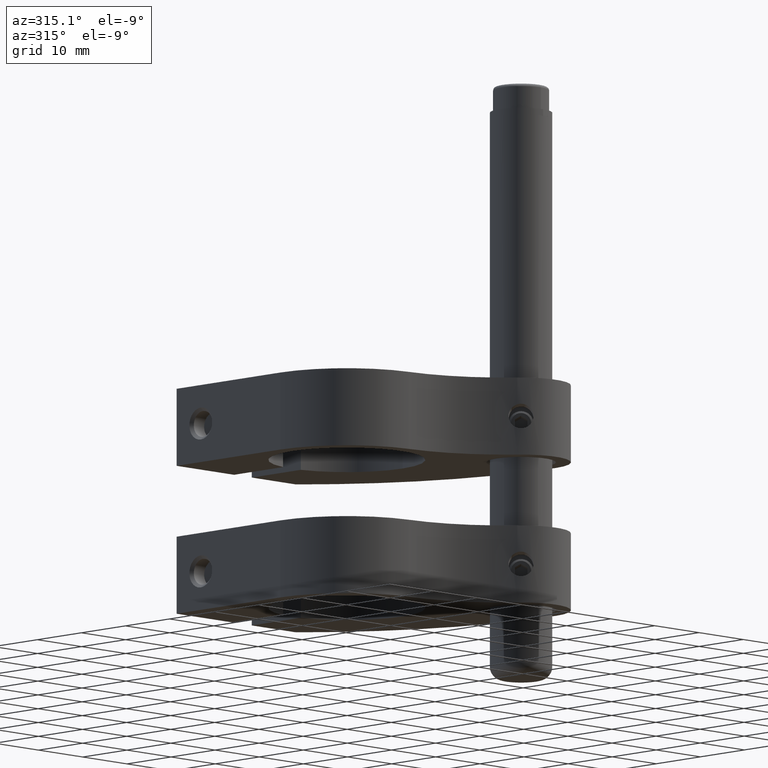
[diagram: clean part render]
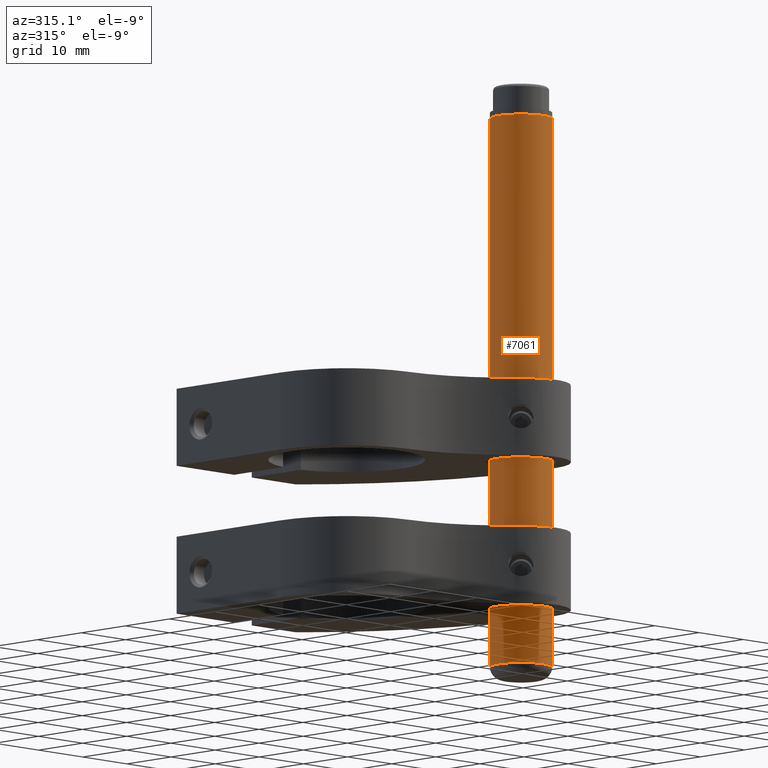
[diagram: same view with one face highlighted and labeled with its STEP entity id]
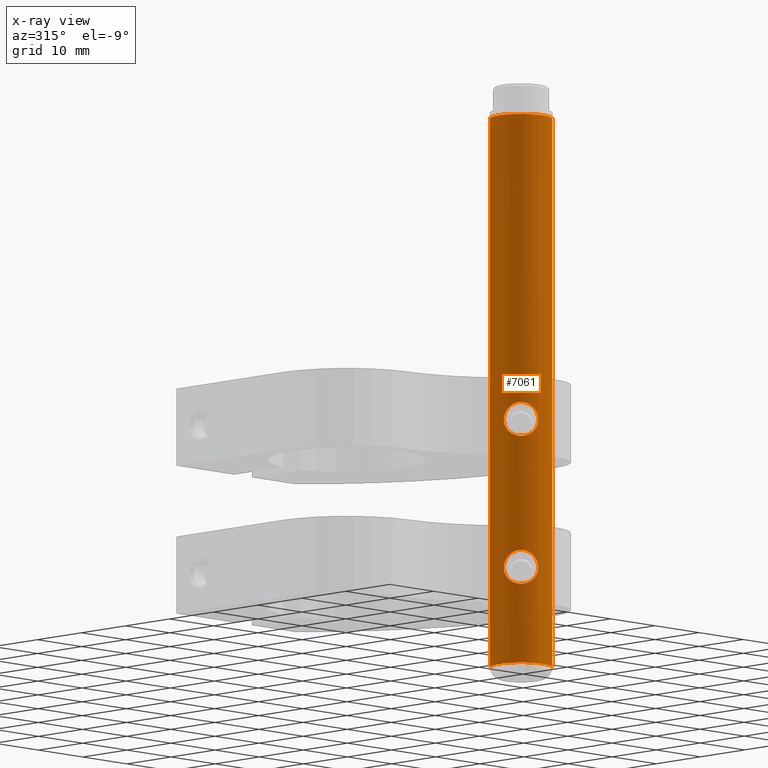
[diagram: x-ray of the same camera — body ghosted, the highlighted face saturated]
A machine part, auxiliary view. The second image highlights one B-rep face of the part: STEP entity #7061.
The next image is the same camera in x-ray: the body ghosted, the highlighted face saturated — about 0% of this face is hidden behind the body in this view.
In plain terms, the highlighted cylindrical surface (edge-blend (fillet) strip) has radius 5 mm, axis along (0, 0, 1).
Its self-contained STEP definition (entity closure, byte-faithful):
#97 = CARTESIAN_POINT ( 'NONE',  ( -2.184727199615947900, 4.498808174009433000, 2.320465936894027700 ) ) ;
#533 = VERTEX_POINT ( 'NONE', #8335 ) ;
#586 = CARTESIAN_POINT ( 'NONE',  ( -1.396638103074365800, 4.812872995519520600, 30.39590446411148500 ) ) ;
#602 = CARTESIAN_POINT ( 'NONE',  ( 0.9010424175793824200, 4.921111363932457300, 30.60450695999419300 ) ) ;
#814 = CARTESIAN_POINT ( 'NONE',  ( 2.381765538087877500, 4.397683228640126200, 29.38611453112948300 ) ) ;
#822 = CARTESIAN_POINT ( 'NONE',  ( 1.823367802186591600, 4.657629385742154700, 1.933899295898871000 ) ) ;
#959 = CARTESIAN_POINT ( 'NONE',  ( 2.604047003358037000, 4.269113095914682400, 28.90168980891842000 ) ) ;
#1046 = CARTESIAN_POINT ( 'NONE',  ( 0.0000000000000000000, 5.000000000000004400, 1.249999999999997600 ) ) ;
#1116 = CARTESIAN_POINT ( 'NONE',  ( 0.1833680144553483700, 4.999999999999990200, 6.749999999999983100 ) ) ;
#1169 = CARTESIAN_POINT ( 'NONE',  ( 0.0000000000000000000, 5.000000000000006200, 25.24999999999999600 ) ) ;
#1171 = VERTEX_POINT ( 'NONE', #1169 ) ;
#1311 = EDGE_CURVE ( 'NONE', #16564, #12098, #7529, .T. ) ;
#1718 = CARTESIAN_POINT ( 'NONE',  ( -0.3679533751682761400, 4.989676769672922100, 1.268645107647090800 ) ) ;
#2053 = ORIENTED_EDGE ( 'NONE', *, *, #2757, .T. ) ;
#2205 = CARTESIAN_POINT ( 'NONE',  ( -1.699393634958844500, 4.710056111911979000, 25.80955403354517600 ) ) ;
#2287 = CARTESIAN_POINT ( 'NONE',  ( 1.685975077870205000, 4.709715596957626500, 30.17980049081472400 ) ) ;
#2411 = CARTESIAN_POINT ( 'NONE',  ( -2.466034059189021700, 4.350300071908614900, 26.76995238562754100 ) ) ;
#2502 = CARTESIAN_POINT ( 'NONE',  ( 2.466274247753717800, 4.350158474846067800, 29.22947006554537100 ) ) ;
#2510 = CARTESIAN_POINT ( 'NONE',  ( 1.687981777678809500, 4.709009468811752100, 1.821711359399898400 ) ) ;
#2582 = CARTESIAN_POINT ( 'NONE',  ( 2.466822057182768800, 4.349870034172556500, 2.771153272301129200 ) ) ;
#2757 = EDGE_CURVE ( 'NONE', #10057, #9051, #14451, .T. ) ;
#2788 = CARTESIAN_POINT ( 'NONE',  ( 1.392891050788172200, 4.804571487632239600, 25.62216939119344500 ) ) ;
#2872 = CARTESIAN_POINT ( 'NONE',  ( 2.658056909084168600, 4.235165477840657100, 28.72868166678957300 ) ) ;
#3077 = DIRECTION ( 'NONE',  ( 0.0000000000000000000, 0.0000000000000000000, -1.000000000000000000 ) ) ;
#3374 = CARTESIAN_POINT ( 'NONE',  ( 0.0000000000000000000, 5.000000000000004400, 1.249999999999997600 ) ) ;
#3423 = CARTESIAN_POINT ( 'NONE',  ( -2.605275470921099200, 4.268380955966348400, 4.898576964414958800 ) ) ;
#3456 = CARTESIAN_POINT ( 'NONE',  ( 1.592940640984798300E-013, 5.000000000000874900, 6.750000000001590700 ) ) ;
#3770 = EDGE_CURVE ( 'NONE', #6674, #1171, #14421, .T. ) ;
#4067 = CARTESIAN_POINT ( 'NONE',  ( 2.071871555480489800, 4.552523489202205700, 29.81678218180383100 ) ) ;
#4222 = CARTESIAN_POINT ( 'NONE',  ( 1.391586327204895800, 4.804937092341765100, 30.37855620847856700 ) ) ;
#4304 = CARTESIAN_POINT ( 'NONE',  ( 2.183418314970979600, 4.499456558267338500, 5.681310510786342000 ) ) ;
#4377 = CARTESIAN_POINT ( 'NONE',  ( 2.071747614691189700, 4.552586458047882100, 2.183050886084228800 ) ) ;
#4437 = CARTESIAN_POINT ( 'NONE',  ( 1.685975077870207800, 4.709715596957623000, 6.179800490814725900 ) ) ;
#4508 = CARTESIAN_POINT ( 'NONE',  ( 0.3703369097797221700, 4.989579346921059000, 25.26881593983965900 ) ) ;
#4515 = CARTESIAN_POINT ( 'NONE',  ( 2.606630390212775900, 4.267558832027391200, 3.105151772198858900 ) ) ;
#4585 = CARTESIAN_POINT ( 'NONE',  ( 2.606630390212775400, 4.267558832027390300, 27.10515177219886200 ) ) ;
#4910 = B_SPLINE_CURVE_WITH_KNOTS ( 'NONE', 3,
 ( #12500, #5556, #19108, #20915, #17325, #15714, #2205, #8859, #7241, #5632, #2411, #10551, #19171, #19041, #14118, #14256, #20703, #14175, #10622, #9009, #9078, #7462, #20777, #10695, #586, #15792, #5701, #20850, #17476, #10761 ),
 .UNSPECIFIED., .F., .F.,
 ( 4, 2, 2, 2, 2, 2, 2, 2, 2, 2, 2, 2, 2, 2, 4 ),
 ( 0.0000000000000000000, 0.0005489970552021792700, 0.001097994110404358500, 0.002195988220808713200, 0.002744985276010889600, 0.003293982331213065600, 0.003842979386415242100, 0.004391976441617418500, 0.004940973496819594600, 0.005489970552021771400, 0.006038967607223947500, 0.006587964662426124300, 0.007685958772830483300, 0.008234955828032660200, 0.008783952883234837100 ),
 .UNSPECIFIED. ) ;
#4921 = CARTESIAN_POINT ( 'NONE',  ( -1.697359754534294000, 4.710805100137721800, 6.192037964818988300 ) ) ;
#4951 = CARTESIAN_POINT ( 'NONE',  ( 0.0000000000000000000, -8.673617379884035500E-016, 45.50000000000000000 ) ) ;
#5003 = CARTESIAN_POINT ( 'NONE',  ( -0.9017480022095797400, 4.920947884687246100, 1.395810346822933700 ) ) ;
#5149 = CARTESIAN_POINT ( 'NONE',  ( -0.1838181259189224600, 5.000000000000013300, 6.750000000000025800 ) ) ;
#5183 = DIRECTION ( 'NONE',  ( -0.0000000000000000000, -0.0000000000000000000, -1.000000000000000000 ) ) ;
#5215 = CARTESIAN_POINT ( 'NONE',  ( -2.071557118437473000, 4.552668770185849900, 2.182852738583012500 ) ) ;
#5266 = CARTESIAN_POINT ( 'NONE',  ( -4.999999999999999100, -8.673617379884035500E-016, 43.50000000000000000 ) ) ;
#5336 = DIRECTION ( 'NONE',  ( 1.000000000000000000, 0.0000000000000000000, 0.0000000000000000000 ) ) ;
#5418 = EDGE_LOOP ( 'NONE', ( #11315, #11925 ) ) ;
#5427 = LINE ( 'NONE', #16271, #8788 ) ;
#5556 = CARTESIAN_POINT ( 'NONE',  ( -0.1858723295581445900, 5.000000000000006200, 25.24999999999999300 ) ) ;
#5632 = CARTESIAN_POINT ( 'NONE',  ( -2.382119918832070700, 4.397477983524113100, 26.61458587484518600 ) ) ;
#5701 = CARTESIAN_POINT ( 'NONE',  ( -0.7247447864085714300, 4.950494382019280200, 30.65910249746252700 ) ) ;
#5859 = CARTESIAN_POINT ( 'NONE',  ( 1.234997709666495900, 4.848091908330632200, 30.46376025620472600 ) ) ;
#6162 = CARTESIAN_POINT ( 'NONE',  ( 2.731358319792221800, 4.188266334120261700, 4.368680393223083800 ) ) ;
#6224 = CARTESIAN_POINT ( 'NONE',  ( 2.731842862838874000, 4.187942794131723500, 27.63557684643748800 ) ) ;
#6630 = CARTESIAN_POINT ( 'NONE',  ( -2.466034059189023500, 4.350300071908613100, 2.769952385627534300 ) ) ;
#6674 = VERTEX_POINT ( 'NONE', #11061 ) ;
#6837 = CARTESIAN_POINT ( 'NONE',  ( -2.659425928636818700, 4.234298910488603500, 4.723250498154254000 ) ) ;
#6996 = DIRECTION ( 'NONE',  ( 0.0000000000000000000, 0.0000000000000000000, 1.000000000000000000 ) ) ;
#7061 = ADVANCED_FACE ( 'NONE', ( #19075, #14345, #9842 ), #11166, .T. ) ;
#7241 = CARTESIAN_POINT ( 'NONE',  ( -2.184727199615943900, 4.498808174009433000, 26.32046593689402400 ) ) ;
#7290 = CARTESIAN_POINT ( 'NONE',  ( 0.0000000000000000000, 3.035766082959412400E-015, -45.50000000000000000 ) ) ;
#7462 = CARTESIAN_POINT ( 'NONE',  ( -2.183073356720765200, 4.499623461618425900, 29.68174940548864200 ) ) ;
#7490 = EDGE_LOOP ( 'NONE', ( #7574, #9617 ) ) ;
#7529 = B_SPLINE_CURVE_WITH_KNOTS ( 'NONE', 3,
 ( #17921, #1116, #12959, #17702, #19475, #7633, #9533, #4437, #14621, #16024, #4304, #14482, #19401, #7916, #11233, #6162, #9238, #9380, #21088, #21008, #4515, #2582, #10927, #16300, #4377, #822, #2510, #16093, #21161, #19550, #11086, #21235, #11161, #1046 ),
 .UNSPECIFIED., .F., .F.,
 ( 4, 2, 2, 2, 2, 2, 2, 2, 2, 2, 2, 2, 2, 2, 2, 2, 4 ),
 ( 0.008783952883234849200, 0.009331605621236775300, 0.009879258359238699700, 0.01042691109724062600, 0.01097456383524255200, 0.01152221657324447800, 0.01206986931124640200, 0.01261752204924832800, 0.01316517478725025300, 0.01371282752525217900, 0.01426048026325410500, 0.01480813300125603100, 0.01535578573925795500, 0.01590343847725988300, 0.01645109121526180900, 0.01699874395326373500, 0.01754639669126565800 ),
 .UNSPECIFIED. ) ;
#7556 = VERTEX_POINT ( 'NONE', #5266 ) ;
#7574 = ORIENTED_EDGE ( 'NONE', *, *, #7665, .F. ) ;
#7630 = CARTESIAN_POINT ( 'NONE',  ( 0.1833680144553499800, 4.999999999999990200, 30.74999999999998200 ) ) ;
#7633 = CARTESIAN_POINT ( 'NONE',  ( 1.234997709666498400, 4.848091908330634900, 6.463760256204730900 ) ) ;
#7665 = EDGE_CURVE ( 'NONE', #1171, #6674, #4910, .T. ) ;
#7700 = CARTESIAN_POINT ( 'NONE',  ( 2.382304472067056500, 4.397372537039387900, 26.61494010967636100 ) ) ;
#7816 = DIRECTION ( 'NONE',  ( 0.0000000000000000000, 0.0000000000000000000, -1.000000000000000000 ) ) ;
#7840 = CARTESIAN_POINT ( 'NONE',  ( 0.7317234806747180400, 4.949508282021119100, 25.34272761180784900 ) ) ;
#7908 = CARTESIAN_POINT ( 'NONE',  ( 2.466822057182767500, 4.349870034172557400, 26.77115327230112700 ) ) ;
#7916 = CARTESIAN_POINT ( 'NONE',  ( 2.604047003358042700, 4.269113095914680600, 4.901689808918405300 ) ) ;
#8335 = CARTESIAN_POINT ( 'NONE',  ( 4.999999999999999100, -2.550383384147271700E-016, 43.50000000000000000 ) ) ;
#8380 = CARTESIAN_POINT ( 'NONE',  ( -2.749757321820099200, 4.175983088316475500, 3.812465183511168500 ) ) ;
#8390 = ORIENTED_EDGE ( 'NONE', *, *, #8984, .F. ) ;
#8788 = VECTOR ( 'NONE', #7816, 1000.000000000000000 ) ;
#8847 = CIRCLE ( 'NONE', #15214, 4.999999999999999100 ) ;
#8859 = CARTESIAN_POINT ( 'NONE',  ( -2.071557118437468600, 4.552668770185850800, 26.18285273858300900 ) ) ;
#8984 = EDGE_CURVE ( 'NONE', #7556, #9051, #17677, .T. ) ;
#8997 = CARTESIAN_POINT ( 'NONE',  ( 4.999999999999999100, -2.550383384147271700E-016, -45.50000000000000000 ) ) ;
#9009 = CARTESIAN_POINT ( 'NONE',  ( -2.465914999614830600, 4.350379233965003100, 29.23051373622358500 ) ) ;
#9051 = VERTEX_POINT ( 'NONE', #13456 ) ;
#9078 = CARTESIAN_POINT ( 'NONE',  ( -2.381394595666351600, 4.397883622482767800, 29.38674082777444600 ) ) ;
#9238 = CARTESIAN_POINT ( 'NONE',  ( 2.749687119609938600, 4.176029319951595700, 4.187340860062694700 ) ) ;
#9380 = CARTESIAN_POINT ( 'NONE',  ( 2.750305015878128100, 4.175622403484275000, 3.821960191997845400 ) ) ;
#9533 = CARTESIAN_POINT ( 'NONE',  ( 1.391586327204898500, 4.804937092341764200, 6.378556208478571000 ) ) ;
#9617 = ORIENTED_EDGE ( 'NONE', *, *, #3770, .F. ) ;
#9842 = FACE_OUTER_BOUND ( 'NONE', #20614, .T. ) ;
#9851 = ORIENTED_EDGE ( 'NONE', *, *, #21223, .T. ) ;
#9917 = CARTESIAN_POINT ( 'NONE',  ( -2.604315457921923600, 4.268954871201767500, 3.098954989840902100 ) ) ;
#10057 = VERTEX_POINT ( 'NONE', #8997 ) ;
#10071 = CARTESIAN_POINT ( 'NONE',  ( -2.731555240319063000, 4.188130788592478600, 4.366392579171104200 ) ) ;
#10551 = CARTESIAN_POINT ( 'NONE',  ( -2.604315457921921000, 4.268954871201767500, 27.09895498984089100 ) ) ;
#10622 = CARTESIAN_POINT ( 'NONE',  ( -2.605275470921100600, 4.268380955966347500, 28.89857696441495700 ) ) ;
#10695 = CARTESIAN_POINT ( 'NONE',  ( -1.697359754534294900, 4.710805100137720900, 30.19203796481899400 ) ) ;
#10761 = CARTESIAN_POINT ( 'NONE',  ( 1.592940636848895200E-013, 5.000000000000874900, 30.75000000000158800 ) ) ;
#10923 = CARTESIAN_POINT ( 'NONE',  ( 2.183418314970972900, 4.499456558267341100, 29.68131051078634300 ) ) ;
#10927 = CARTESIAN_POINT ( 'NONE',  ( 2.382304472067055600, 4.397372537039388800, 2.614940109676352300 ) ) ;
#11061 = CARTESIAN_POINT ( 'NONE',  ( 1.592940636848895200E-013, 5.000000000000874900, 30.75000000000158800 ) ) ;
#11086 = CARTESIAN_POINT ( 'NONE',  ( 0.7317234806747162600, 4.949508282021119100, 1.342727611807849900 ) ) ;
#11161 = CARTESIAN_POINT ( 'NONE',  ( 0.1854171880099169400, 5.000000000000004400, 1.249999999999997100 ) ) ;
#11166 = CYLINDRICAL_SURFACE ( 'NONE', #13822, 4.999999999999999100 ) ;
#11233 = CARTESIAN_POINT ( 'NONE',  ( 2.658056909084171700, 4.235165477840653600, 4.728681666789560400 ) ) ;
#11315 = ORIENTED_EDGE ( 'NONE', *, *, #18701, .F. ) ;
#11775 = CARTESIAN_POINT ( 'NONE',  ( -2.381394595666351600, 4.397883622482767800, 5.386740827774445100 ) ) ;
#11925 = ORIENTED_EDGE ( 'NONE', *, *, #1311, .F. ) ;
#11935 = CARTESIAN_POINT ( 'NONE',  ( 0.0000000000000000000, 5.000000000000004400, 1.249999999999997600 ) ) ;
#12098 = VERTEX_POINT ( 'NONE', #3374 ) ;
#12500 = CARTESIAN_POINT ( 'NONE',  ( 0.0000000000000000000, 5.000000000000006200, 25.24999999999999600 ) ) ;
#12579 = B_SPLINE_CURVE_WITH_KNOTS ( 'NONE', 3,
 ( #11935, #18324, #1718, #16690, #5003, #21844, #15304, #5215, #97, #18469, #6630, #9917, #13342, #16837, #8380, #20071, #10071, #6837, #3423, #21697, #11775, #15016, #13492, #4921, #18542, #20304, #20224, #15236, #5149, #16913 ),
 .UNSPECIFIED., .F., .F.,
 ( 4, 2, 2, 2, 2, 2, 2, 2, 2, 2, 2, 2, 2, 2, 4 ),
 ( 0.0000000000000000000, 0.0005489970552021771000, 0.001097994110404354200, 0.002195988220808709300, 0.002744985276010886200, 0.003293982331213062600, 0.003842979386415239100, 0.004391976441617415900, 0.004940973496819594600, 0.005489970552021774000, 0.006038967607223952700, 0.006587964662426132100, 0.007685958772830490300, 0.008234955828032668900, 0.008783952883234849200 ),
 .UNSPECIFIED. ) ;
#12873 = CARTESIAN_POINT ( 'NONE',  ( 1.687981777678809300, 4.709009468811753900, 25.82171135939989900 ) ) ;
#12951 = CARTESIAN_POINT ( 'NONE',  ( 2.750305015878127300, 4.175622403484276800, 27.82196019199785300 ) ) ;
#12959 = CARTESIAN_POINT ( 'NONE',  ( 0.3694571229566074900, 4.989563696588903400, 6.731149153900976700 ) ) ;
#13342 = CARTESIAN_POINT ( 'NONE',  ( -2.658980126042729300, 4.234579723884653600, 3.275174065605581700 ) ) ;
#13456 = CARTESIAN_POINT ( 'NONE',  ( -4.999999999999999100, -8.673617379884035500E-016, -45.50000000000000000 ) ) ;
#13492 = CARTESIAN_POINT ( 'NONE',  ( -2.069960904282416500, 4.553398792296958300, 5.818970037857261500 ) ) ;
#13822 = AXIS2_PLACEMENT_3D ( 'NONE', #4951, #3077, #15042 ) ;
#13937 = DIRECTION ( 'NONE',  ( 1.000000000000000000, 0.0000000000000000000, 0.0000000000000000000 ) ) ;
#14118 = CARTESIAN_POINT ( 'NONE',  ( -2.749757321820098400, 4.175983088316477200, 27.81246518351116800 ) ) ;
#14175 = CARTESIAN_POINT ( 'NONE',  ( -2.659425928636819100, 4.234298910488603500, 28.72325049815425000 ) ) ;
#14192 = CARTESIAN_POINT ( 'NONE',  ( 1.592940636848895200E-013, 5.000000000000874900, 30.75000000000158800 ) ) ;
#14256 = CARTESIAN_POINT ( 'NONE',  ( -2.750237983665511500, 4.175666547512134800, 28.18034874411040000 ) ) ;
#14345 = FACE_BOUND ( 'NONE', #7490, .T. ) ;
#14421 = B_SPLINE_CURVE_WITH_KNOTS ( 'NONE', 3,
 ( #14192, #7630, #17421, #15946, #602, #5859, #4222, #2287, #21000, #4067, #10923, #814, #2502, #959, #2872, #21367, #19611, #12951, #6224, #16220, #4585, #7908, #7700, #19679, #21228, #16375, #12873, #2788, #17836, #21155, #7840, #4508, #14616, #14552 ),
 .UNSPECIFIED., .F., .F.,
 ( 4, 2, 2, 2, 2, 2, 2, 2, 2, 2, 2, 2, 2, 2, 2, 2, 4 ),
 ( 0.008783952883234837100, 0.009331605621236761400, 0.009879258359238687500, 0.01042691109724061200, 0.01097456383524253600, 0.01152221657324446200, 0.01206986931124638700, 0.01261752204924831300, 0.01316517478725023900, 0.01371282752525216300, 0.01426048026325408800, 0.01480813300125601400, 0.01535578573925793600, 0.01590343847725986200, 0.01645109121526178900, 0.01699874395326371500, 0.01754639669126563700 ),
 .UNSPECIFIED. ) ;
#14451 = CIRCLE ( 'NONE', #20648, 4.999999999999999100 ) ;
#14482 = CARTESIAN_POINT ( 'NONE',  ( 2.381765538087883700, 4.397683228640122600, 5.386114531129470300 ) ) ;
#14485 = CARTESIAN_POINT ( 'NONE',  ( -4.999999999999999100, -8.673617379884035500E-016, 45.50000000000000000 ) ) ;
#14552 = CARTESIAN_POINT ( 'NONE',  ( 0.0000000000000000000, 5.000000000000006200, 25.24999999999999600 ) ) ;
#14616 = CARTESIAN_POINT ( 'NONE',  ( 0.1854171880099190500, 5.000000000000007100, 25.24999999999999300 ) ) ;
#14621 = CARTESIAN_POINT ( 'NONE',  ( 1.823907933952877000, 4.657411481779415200, 6.065601386277802700 ) ) ;
#15016 = CARTESIAN_POINT ( 'NONE',  ( -2.183073356720763400, 4.499623461618425000, 5.681749405488639900 ) ) ;
#15042 = DIRECTION ( 'NONE',  ( -1.000000000000000000, 0.0000000000000000000, 0.0000000000000000000 ) ) ;
#15214 = AXIS2_PLACEMENT_3D ( 'NONE', #15409, #5183, #5336 ) ;
#15236 = CARTESIAN_POINT ( 'NONE',  ( -0.3655148503871649100, 4.989894640769210600, 6.731754013739940300 ) ) ;
#15304 = CARTESIAN_POINT ( 'NONE',  ( -1.699393634958849700, 4.710056111911976400, 1.809554033545179400 ) ) ;
#15409 = CARTESIAN_POINT ( 'NONE',  ( 0.0000000000000000000, 2.602085213965210600E-015, 43.50000000000000000 ) ) ;
#15714 = CARTESIAN_POINT ( 'NONE',  ( -1.399789513313222300, 4.812078500149995700, 25.60565203965001800 ) ) ;
#15792 = CARTESIAN_POINT ( 'NONE',  ( -0.9010829423279331800, 4.921040098041841800, 30.60435473372440300 ) ) ;
#15946 = CARTESIAN_POINT ( 'NONE',  ( 0.7264288481323690800, 4.950206619588962900, 30.65856641729306300 ) ) ;
#16024 = CARTESIAN_POINT ( 'NONE',  ( 2.071871555480495600, 4.552523489202203100, 5.816782181803823400 ) ) ;
#16093 = CARTESIAN_POINT ( 'NONE',  ( 1.392891050788171500, 4.804571487632240500, 1.622169391193439600 ) ) ;
#16220 = CARTESIAN_POINT ( 'NONE',  ( 2.659781205892795400, 4.234075366705578600, 27.27796565256518200 ) ) ;
#16271 = CARTESIAN_POINT ( 'NONE',  ( 4.999999999999999100, -2.550383384147270700E-016, 45.50000000000000000 ) ) ;
#16300 = CARTESIAN_POINT ( 'NONE',  ( 2.185306494122126500, 4.498521463090575900, 2.321250160339036700 ) ) ;
#16375 = CARTESIAN_POINT ( 'NONE',  ( 1.823367802186592400, 4.657629385742152000, 25.93389929589886100 ) ) ;
#16453 = DIRECTION ( 'NONE',  ( 0.0000000000000000000, 0.0000000000000000000, -1.000000000000000000 ) ) ;
#16564 = VERTEX_POINT ( 'NONE', #3456 ) ;
#16690 = CARTESIAN_POINT ( 'NONE',  ( -0.7250444708247753000, 4.950411545259421500, 1.341052887023827900 ) ) ;
#16837 = CARTESIAN_POINT ( 'NONE',  ( -2.731255316072422400, 4.188327249278806600, 3.631499872066393600 ) ) ;
#16913 = CARTESIAN_POINT ( 'NONE',  ( 1.592940640984798300E-013, 5.000000000000874900, 6.750000000001590700 ) ) ;
#17325 = CARTESIAN_POINT ( 'NONE',  ( -0.9017480022095862900, 4.920947884687245200, 25.39581034682293700 ) ) ;
#17421 = CARTESIAN_POINT ( 'NONE',  ( 0.3694571229566067600, 4.989563696588905200, 30.73114915390098300 ) ) ;
#17476 = CARTESIAN_POINT ( 'NONE',  ( -0.1838181259189231900, 5.000000000000015100, 30.75000000000002100 ) ) ;
#17677 = LINE ( 'NONE', #14485, #21103 ) ;
#17702 = CARTESIAN_POINT ( 'NONE',  ( 0.7264288481323701900, 4.950206619588962000, 6.658566417293061900 ) ) ;
#17836 = CARTESIAN_POINT ( 'NONE',  ( 1.233864646318968000, 4.848306240827514400, 25.53583460434883900 ) ) ;
#17921 = CARTESIAN_POINT ( 'NONE',  ( 1.592940640984798300E-013, 5.000000000000874900, 6.750000000001590700 ) ) ;
#18324 = CARTESIAN_POINT ( 'NONE',  ( -0.1858723295581429200, 5.000000000000005300, 1.249999999999997800 ) ) ;
#18469 = CARTESIAN_POINT ( 'NONE',  ( -2.382119918832072500, 4.397477983524113100, 2.614585874845189100 ) ) ;
#18542 = CARTESIAN_POINT ( 'NONE',  ( -1.396638103074364600, 4.812872995519521500, 6.395904464111480600 ) ) ;
#18701 = EDGE_CURVE ( 'NONE', #12098, #16564, #12579, .T. ) ;
#19041 = CARTESIAN_POINT ( 'NONE',  ( -2.731255316072420200, 4.188327249278808400, 27.63149987206639200 ) ) ;
#19075 = FACE_BOUND ( 'NONE', #5418, .T. ) ;
#19108 = CARTESIAN_POINT ( 'NONE',  ( -0.3679533751682790800, 4.989676769672923000, 25.26864510764709200 ) ) ;
#19136 = ORIENTED_EDGE ( 'NONE', *, *, #20353, .T. ) ;
#19171 = CARTESIAN_POINT ( 'NONE',  ( -2.658980126042726600, 4.234579723884654500, 27.27517406560558700 ) ) ;
#19401 = CARTESIAN_POINT ( 'NONE',  ( 2.466274247753723200, 4.350158474846064200, 5.229470065545360300 ) ) ;
#19475 = CARTESIAN_POINT ( 'NONE',  ( 0.9010424175793841900, 4.921111363932457300, 6.604506959994191500 ) ) ;
#19550 = CARTESIAN_POINT ( 'NONE',  ( 0.9040590836017046200, 4.920484990693509500, 1.396692443079817100 ) ) ;
#19611 = CARTESIAN_POINT ( 'NONE',  ( 2.749687119609937300, 4.176029319951597400, 28.18734086006270100 ) ) ;
#19679 = CARTESIAN_POINT ( 'NONE',  ( 2.185306494122127900, 4.498521463090575000, 26.32125016033904100 ) ) ;
#20071 = CARTESIAN_POINT ( 'NONE',  ( -2.750237983665512400, 4.175666547512134000, 4.180348744110398600 ) ) ;
#20224 = CARTESIAN_POINT ( 'NONE',  ( -0.7247447864085685400, 4.950494382019281000, 6.659102497462522600 ) ) ;
#20304 = CARTESIAN_POINT ( 'NONE',  ( -0.9010829423279310700, 4.921040098041843600, 6.604354733724411700 ) ) ;
#20353 = EDGE_CURVE ( 'NONE', #7556, #533, #8847, .T. ) ;
#20614 = EDGE_LOOP ( 'NONE', ( #19136, #9851, #2053, #8390 ) ) ;
#20648 = AXIS2_PLACEMENT_3D ( 'NONE', #7290, #6996, #13937 ) ;
#20703 = CARTESIAN_POINT ( 'NONE',  ( -2.731555240319061700, 4.188130788592477700, 28.36639257917110200 ) ) ;
#20777 = CARTESIAN_POINT ( 'NONE',  ( -2.069960904282416100, 4.553398792296955700, 29.81897003785725500 ) ) ;
#20850 = CARTESIAN_POINT ( 'NONE',  ( -0.3655148503871659700, 4.989894640769213300, 30.73175401373993800 ) ) ;
#20915 = CARTESIAN_POINT ( 'NONE',  ( -0.7250444708247805200, 4.950411545259418800, 25.34105288702383200 ) ) ;
#21000 = CARTESIAN_POINT ( 'NONE',  ( 1.823907933952872300, 4.657411481779417000, 30.06560138627780500 ) ) ;
#21008 = CARTESIAN_POINT ( 'NONE',  ( 2.659781205892795400, 4.234075366705576800, 3.277965652565186800 ) ) ;
#21088 = CARTESIAN_POINT ( 'NONE',  ( 2.731842862838875300, 4.187942794131721800, 3.635576846437485800 ) ) ;
#21103 = VECTOR ( 'NONE', #16453, 1000.000000000000000 ) ;
#21155 = CARTESIAN_POINT ( 'NONE',  ( 0.9040590836017051700, 4.920484990693509500, 25.39669244307981800 ) ) ;
#21161 = CARTESIAN_POINT ( 'NONE',  ( 1.233864646318968600, 4.848306240827516200, 1.535834604348837300 ) ) ;
#21223 = EDGE_CURVE ( 'NONE', #533, #10057, #5427, .T. ) ;
#21228 = CARTESIAN_POINT ( 'NONE',  ( 2.071747614691189700, 4.552586458047880300, 26.18305088608422800 ) ) ;
#21235 = CARTESIAN_POINT ( 'NONE',  ( 0.3703369097797196100, 4.989579346921059000, 1.268815939839656300 ) ) ;
#21367 = CARTESIAN_POINT ( 'NONE',  ( 2.731358319792219100, 4.188266334120263500, 28.36868039322310500 ) ) ;
#21697 = CARTESIAN_POINT ( 'NONE',  ( -2.465914999614830200, 4.350379233965005800, 5.230513736223594300 ) ) ;
#21844 = CARTESIAN_POINT ( 'NONE',  ( -1.399789513313223200, 4.812078500149994800, 1.605652039650022900 ) ) ;